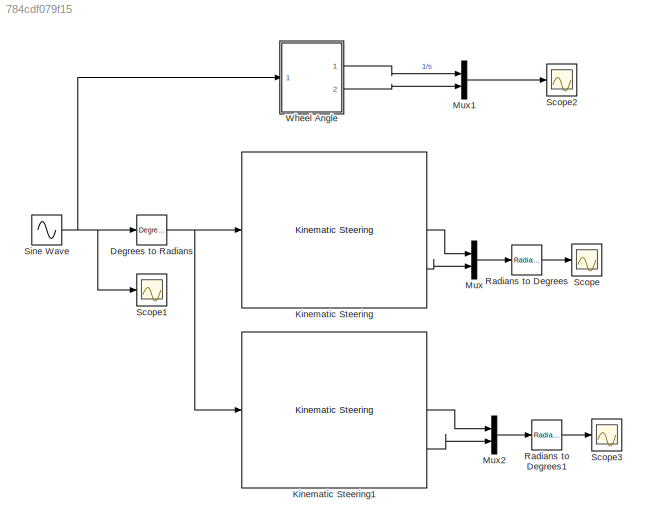
MODEL slx_784cdf079f15
KIND model
CONFIG AbsTol = auto
CONFIG EnableMultiTasking = off
CONFIG FixedStep = auto
CONFIG MaxStep = auto
CONFIG MinStep = auto
CONFIG RelTol = 1e-3
CONFIG SampleTimeConstraint = Unconstrained
CONFIG SolverName = VariableStepAuto
CONFIG StartTime = 0.0
CONFIG StopTime = 1
BLOCK [Reference] Degrees to Radians  REF=simulink_extras/Transformations/Degrees to
Radians
  Ports = [1, 1]
  SourceBlock = simulink_extras/Transformations/Degrees to\nRadians
  SourceProductBaseCode = SL
  SourceType = DegreesToRadians
BLOCK [Reference] Kinematic Steering  REF=vehdynlibsteering/Kinematic Steering
  Ports = [1, 3]
  SourceBlock = vehdynlibsteering/Kinematic Steering
  SourceProductBaseCode = VE
  SourceType = Kinematic Steering
BLOCK [Reference] Kinematic Steering1  REF=vehdynlibsteering/Kinematic Steering
  Ports = [1, 3]
  SourceBlock = vehdynlibsteering/Kinematic Steering
  SourceProductBaseCode = VE
  SourceType = Kinematic Steering
BLOCK [Mux] Mux
  DisplayOption = bar
  Inputs = 2
  Ports = [2, 1]
BLOCK [Mux] Mux1
  DisplayOption = bar
  Inputs = 2
  Ports = [2, 1]
BLOCK [Mux] Mux2
  DisplayOption = bar
  Inputs = 2
  Ports = [2, 1]
BLOCK [Reference] Radians to Degrees  REF=simulink_extras/Transformations/Radians
to Degrees
  Ports = [1, 1]
  SourceBlock = simulink_extras/Transformations/Radians\nto Degrees
  SourceProductBaseCode = SL
  SourceType = RadiansToDegrees
BLOCK [Reference] Radians to Degrees1  REF=simulink_extras/Transformations/Radians
to Degrees
  Ports = [1, 1]
  SourceBlock = simulink_extras/Transformations/Radians\nto Degrees
  SourceProductBaseCode = SL
  SourceType = RadiansToDegrees
BLOCK [Scope] Scope
  Floating = off
  NumInputPorts = 1
  Ports = [1]
  ScopeSpecificationString = Simulink.scopes.TimeScopeBlockCfg('CurrentConfiguration', extmgr.ConfigurationSet(extmgr.Configuration('Core','General UI',true),extmgr.Configuration('Core','Source UI',true),extmgr.Configuration('Sources','WiredSimulink',true),extmgr.Configuration('Visuals','Time Domain',true,'SerializedDisplays',{struct('MinYLimReal','-66.84612','MaxYLimReal','66.8476','YLabelReal','','MinYLimMag','0.00000','Max...<+1363ch>
BLOCK [Scope] Scope1
  Floating = off
  NumInputPorts = 1
  Ports = [1]
  ScopeSpecificationString = Simulink.scopes.TimeScopeBlockCfg('CurrentConfiguration', extmgr.ConfigurationSet(extmgr.Configuration('Core','General UI',true),extmgr.Configuration('Core','Source UI',true),extmgr.Configuration('Sources','WiredSimulink',true,'DataLoggingVariableName','ScopeData1'),extmgr.Configuration('Visuals','Time Domain',true,'SerializedDisplays',{struct('MinYLimReal','-130.79135','MaxYLimReal','131.14929','...<+1382ch>
BLOCK [Scope] Scope2
  Floating = off
  NumInputPorts = 1
  Ports = [1]
  ScopeSpecificationString = Simulink.scopes.TimeScopeBlockCfg('CurrentConfiguration', extmgr.ConfigurationSet(extmgr.Configuration('Core','General UI',true),extmgr.Configuration('Core','Source UI',true),extmgr.Configuration('Sources','WiredSimulink',true,'DataLoggingVariableName','ScopeData2'),extmgr.Configuration('Visuals','Time Domain',true,'SerializedDisplays',{struct('MinYLimReal','-1149.76924','MaxYLimReal','158.14878',...<+1402ch>
BLOCK [Scope] Scope3
  Floating = off
  NumInputPorts = 1
  Ports = [1]
  ScopeSpecificationString = Simulink.scopes.TimeScopeBlockCfg('CurrentConfiguration', extmgr.ConfigurationSet(extmgr.Configuration('Core','General UI',true),extmgr.Configuration('Core','Source UI',true),extmgr.Configuration('Sources','WiredSimulink',true,'DataLoggingVariableName','ScopeData3'),extmgr.Configuration('Visuals','Time Domain',true,'SerializedDisplays',{struct('MinYLimReal','-38.53273','MaxYLimReal','38.65367','YL...<+1408ch>
BLOCK [Sin] Sine Wave
  Amplitude = 105
  Frequency = 10
  Ports = [0, 1]
  SampleTime = 0
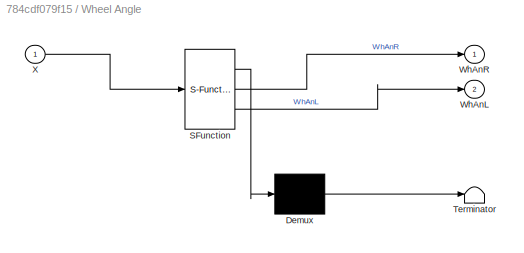
BLOCK [SubSystem] Wheel Angle
  ErrorFcn = Stateflow.Translate.translate
  PermitHierarchicalResolution = ExplicitOnly
  Ports = [1, 2]
  RequestExecContextInheritance = off
  SFBlockType = MATLAB Function
  TreatAsAtomicUnit = on
BLOCK [Demux] Wheel Angle/ Demux 
  Outputs = 1
  Ports = [1, 1]
BLOCK [S-Function] Wheel Angle/ SFunction 
  EnableBusSupport = on
  FunctionName = sf_sfun
  PortCounts = [1 3]
  Ports = [1, 3]
  SFcnIsStateOwnerBlock = off
  SFunctionDeploymentMode = off
  Tag = Stateflow S-Function 5
BLOCK [Terminator] Wheel Angle/ Terminator 
BLOCK [Outport] Wheel Angle/WhAnL
  Port = 2
BLOCK [Outport] Wheel Angle/WhAnR
BLOCK [Inport] Wheel Angle/X
NET Degrees to Radians:1 -> Kinematic Steering1:1, Kinematic Steering:1
LINE Kinematic Steering1:2 -> Mux2:1
LINE Kinematic Steering1:3 -> Mux2:2
LINE Kinematic Steering:2 -> Mux:1
LINE Kinematic Steering:3 -> Mux:2
LINE Mux1:1 -> Scope2:1
LINE Mux2:1 -> Radians to Degrees1:1
LINE Mux:1 -> Radians to Degrees:1
LINE Radians to Degrees1:1 -> Scope3:1
LINE Radians to Degrees:1 -> Scope:1
NET Sine Wave:1 -> Degrees to Radians:1, Scope1:1, Wheel Angle:1
LINE Wheel Angle:1 -> Mux1:1
LINE Wheel Angle:2 -> Mux1:2
note: NET lines group one-source signal fan-out (src -> all destinations, sorted); 1:1 wires keep LINE
CHART Wheel Angle states=1 transitions=1
  STATE_LABEL 'eML_blk_kernel()'
  STATE_LABEL 'SCRIPT:\nfunction [WhAnR,WhAnL] = fcn(X)\n%#codegen\n\nif X >= 0\n    WhAnL = -4E-11*X^6 + 8E-9*X^5 - 6E-7*X^4 + 3E-5*X^3 - 4E-4*X^2 + 0.2045*X + 0.0034;\n    WhAnR = -1E-10*X^6 + 3E-8*X^5 - 3E-6*X^4 + 1E-4*X^3 - 0.0015*X^2 + 0.2149*X - 0.0102;\nelse\n    WhAnR = -4E-11*X^6 + 8E-9*X^5 - 6E-7*X^4 + 3E-5*X^3 - 4E-4*X^2 + 0.2045*X + 0.0034;\n    WhAnL = -1E-10*X^6 + 3E-8*X^5 - 3E-6*X^4 + 1E-4*X^3 - 0.0015*X^2...<+29ch>'
CHART  states=0 transitions=0
